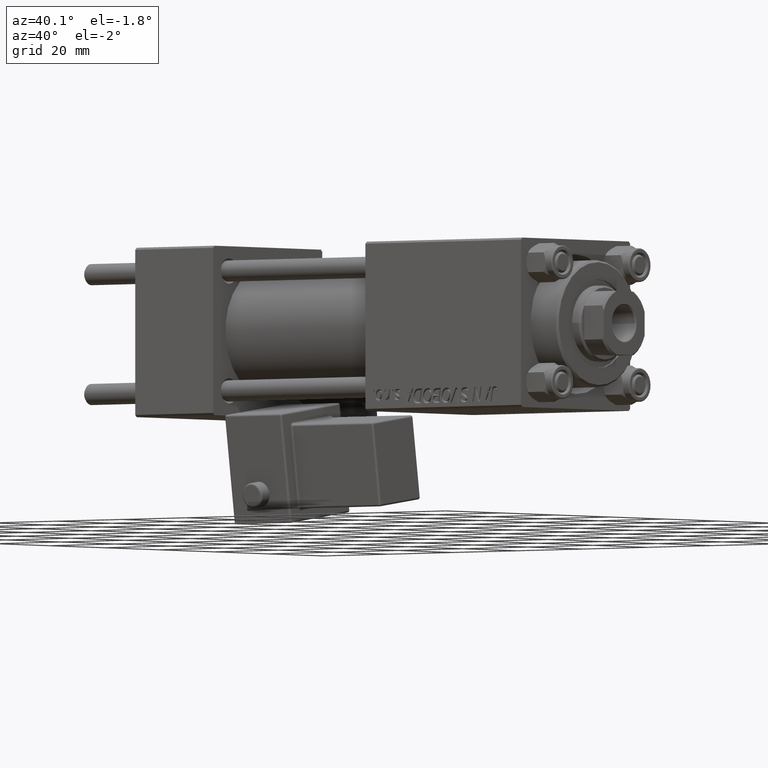
[diagram: clean part render]
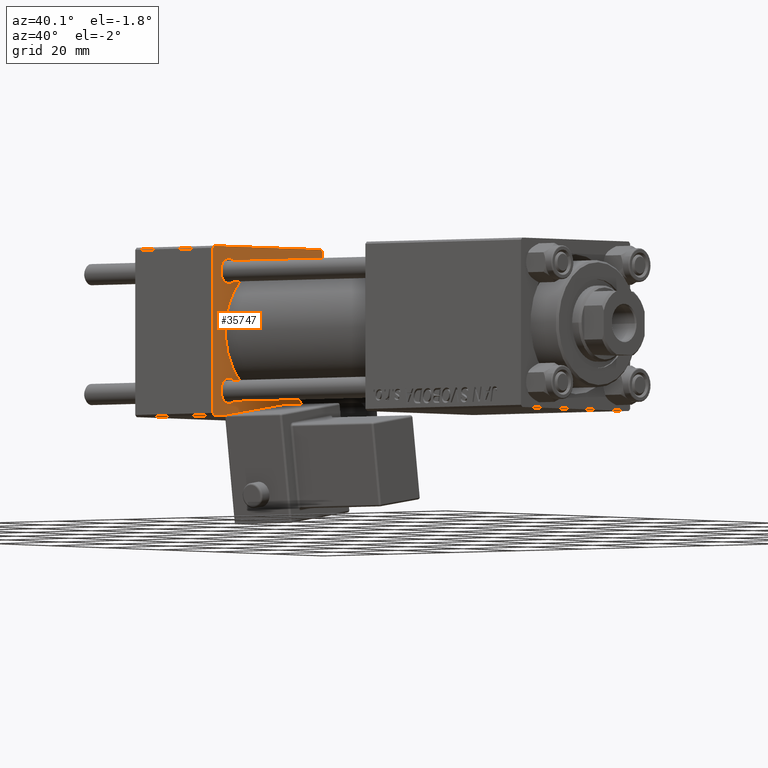
[diagram: same view with one face highlighted and labeled with its STEP entity id]
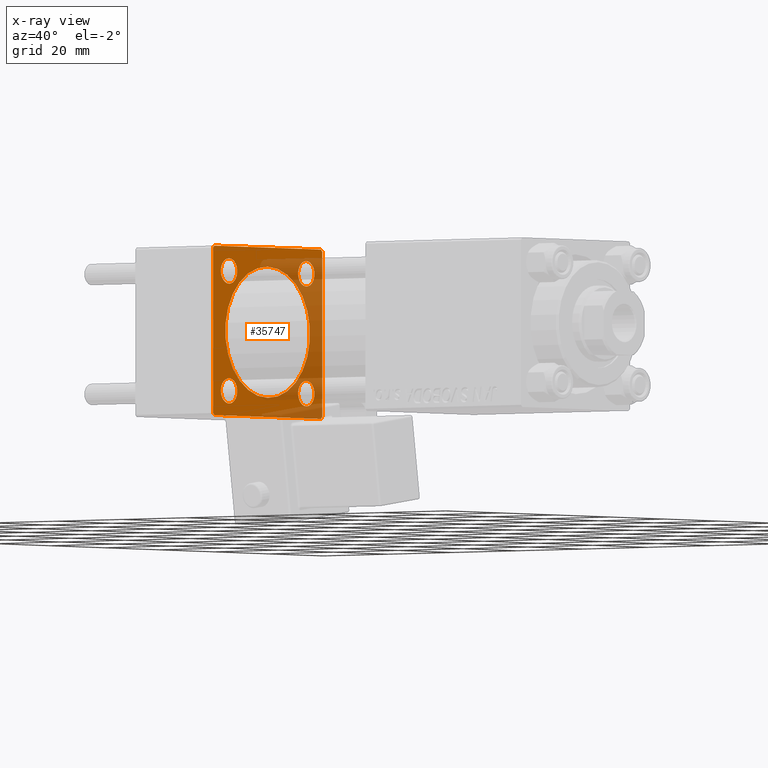
[diagram: x-ray of the same camera — body ghosted, the highlighted face saturated]
A machine part, auxiliary view. The second image highlights one B-rep face of the part: STEP entity #35747.
The next image is the same camera in x-ray: the body ghosted, the highlighted face saturated — about 40% of this face is hidden behind the body in this view.
In plain terms, the highlighted planar face has unit normal (-1, 0, 0).
Its self-contained STEP definition (entity closure, byte-faithful):
#944 = CIRCLE ( 'NONE', #25264, 2.999999999999976463 ) ;
#1040 = CARTESIAN_POINT ( 'NONE',  ( 24.00000000000000000, -14.14999999999999503, 14.15000000000000391 ) ) ;
#1445 = DIRECTION ( 'NONE',  ( -1.000000000000000000, -0.000000000000000000, -0.000000000000000000 ) ) ;
#1588 = VECTOR ( 'NONE', #30825, 1000.000000000000000 ) ;
#1781 = CARTESIAN_POINT ( 'NONE',  ( 24.00000000000000000, 14.14999999999999858, 14.15000000000000036 ) ) ;
#1873 = CIRCLE ( 'NONE', #35446, 3.000000000000000888 ) ;
#2028 = FACE_BOUND ( 'NONE', #12432, .T. ) ;
#2211 = ORIENTED_EDGE ( 'NONE', *, *, #8078, .T. ) ;
#3961 = CARTESIAN_POINT ( 'NONE',  ( 24.00000000000000000, 20.00000000000000000, 20.00000000000000000 ) ) ;
#4004 = DIRECTION ( 'NONE',  ( 0.000000000000000000, -0.7071067811865425767, 0.7071067811865525687 ) ) ;
#4268 = DIRECTION ( 'NONE',  ( -1.000000000000000000, -0.000000000000000000, -0.000000000000000000 ) ) ;
#5133 = DIRECTION ( 'NONE',  ( 0.000000000000000000, 0.000000000000000000, 1.000000000000000000 ) ) ;
#5181 = VERTEX_POINT ( 'NONE', #15562 ) ;
#5207 = EDGE_LOOP ( 'NONE', ( #20377, #37912 ) ) ;
#5316 = CARTESIAN_POINT ( 'NONE',  ( 24.00000000000000000, -20.00000000000000355, 19.99999999999998934 ) ) ;
#5335 = AXIS2_PLACEMENT_3D ( 'NONE', #1781, #13868, #21994 ) ;
#5509 = CARTESIAN_POINT ( 'NONE',  ( 24.00000000000000000, 0.000000000000000000, 0.000000000000000000 ) ) ;
#5658 = EDGE_LOOP ( 'NONE', ( #10948, #41906 ) ) ;
#5963 = ORIENTED_EDGE ( 'NONE', *, *, #8298, .T. ) ;
#6336 = CARTESIAN_POINT ( 'NONE',  ( 24.00000000000000000, 0.000000000000000000, 15.50000000000000000 ) ) ;
#7168 = CARTESIAN_POINT ( 'NONE',  ( 24.00000000000000000, -14.14999999999999503, -14.15000000000000391 ) ) ;
#7766 = DIRECTION ( 'NONE',  ( -1.000000000000000000, -0.000000000000000000, -0.000000000000000000 ) ) ;
#7775 = CIRCLE ( 'NONE', #43846, 15.50000000000000000 ) ;
#8078 = EDGE_CURVE ( 'NONE', #27614, #38458, #36846, .T. ) ;
#8119 = LINE ( 'NONE', #40158, #32316 ) ;
#8135 = CARTESIAN_POINT ( 'NONE',  ( 24.00000000000000000, -20.00000000000000000, -19.49999999999999645 ) ) ;
#8204 = CARTESIAN_POINT ( 'NONE',  ( 24.00000000000000000, -14.14999999999999503, -14.15000000000000391 ) ) ;
#8298 = EDGE_CURVE ( 'NONE', #48538, #5181, #43889, .T. ) ;
#8368 = DIRECTION ( 'NONE',  ( 0.000000000000000000, 0.000000000000000000, -1.000000000000000000 ) ) ;
#8573 = EDGE_CURVE ( 'NONE', #28172, #10254, #44094, .T. ) ;
#8959 = EDGE_CURVE ( 'NONE', #27346, #49787, #7775, .T. ) ;
#9004 = DIRECTION ( 'NONE',  ( -0.000000000000000000, -0.7071067811865500152, -0.7071067811865451302 ) ) ;
#9255 = CARTESIAN_POINT ( 'NONE',  ( 24.00000000000000000, -20.00000000000000355, 19.49999999999998224 ) ) ;
#9356 = CARTESIAN_POINT ( 'NONE',  ( 24.00000000000000000, 20.00000000000000000, -19.50000000000002132 ) ) ;
#9438 = DIRECTION ( 'NONE',  ( 0.000000000000000000, 0.000000000000000000, 1.000000000000000000 ) ) ;
#9457 = ORIENTED_EDGE ( 'NONE', *, *, #18639, .T. ) ;
#10254 = VERTEX_POINT ( 'NONE', #9356 ) ;
#10919 = CARTESIAN_POINT ( 'NONE',  ( 24.00000000000000000, -20.00000000000000355, 19.49999999999998224 ) ) ;
#10948 = ORIENTED_EDGE ( 'NONE', *, *, #8959, .F. ) ;
#11182 = DIRECTION ( 'NONE',  ( 0.000000000000000000, 0.000000000000000000, 1.000000000000000000 ) ) ;
#11268 = DIRECTION ( 'NONE',  ( -0.000000000000000000, 0.7071067811865524577, 0.7071067811865426878 ) ) ;
#11467 = DIRECTION ( 'NONE',  ( 1.000000000000000000, 0.000000000000000000, 0.000000000000000000 ) ) ;
#11614 = CARTESIAN_POINT ( 'NONE',  ( 24.00000000000000000, -14.14999999999999503, 11.15000000000000391 ) ) ;
#11672 = VERTEX_POINT ( 'NONE', #18719 ) ;
#11845 = CARTESIAN_POINT ( 'NONE',  ( 24.00000000000000000, 20.00000000000000000, 19.49999999999999289 ) ) ;
#12309 = VERTEX_POINT ( 'NONE', #11614 ) ;
#12360 = ORIENTED_EDGE ( 'NONE', *, *, #40554, .T. ) ;
#12379 = CARTESIAN_POINT ( 'NONE',  ( 24.00000000000000000, -14.14999999999999503, 17.15000000000000568 ) ) ;
#12432 = EDGE_LOOP ( 'NONE', ( #9457, #12360 ) ) ;
#13020 = AXIS2_PLACEMENT_3D ( 'NONE', #26176, #45392, #30115 ) ;
#13424 = VECTOR ( 'NONE', #4004, 999.9999999999998863 ) ;
#13868 = DIRECTION ( 'NONE',  ( -1.000000000000000000, -0.000000000000000000, -0.000000000000000000 ) ) ;
#14212 = CIRCLE ( 'NONE', #39389, 3.000000000000000888 ) ;
#14413 = CARTESIAN_POINT ( 'NONE',  ( 24.00000000000000000, 14.14999999999999858, 11.15000000000002700 ) ) ;
#14617 = CARTESIAN_POINT ( 'NONE',  ( 24.00000000000000000, 19.50000000000000000, 20.00000000000000000 ) ) ;
#14796 = CARTESIAN_POINT ( 'NONE',  ( 24.00000000000000000, 20.00000000000000000, -20.00000000000000711 ) ) ;
#14819 = CARTESIAN_POINT ( 'NONE',  ( 24.00000000000000000, 1.898202538678397557E-15, -15.50000000000000000 ) ) ;
#14871 = CARTESIAN_POINT ( 'NONE',  ( 24.00000000000000000, 0.000000000000000000, 0.000000000000000000 ) ) ;
#14946 = EDGE_CURVE ( 'NONE', #28172, #17836, #50817, .T. ) ;
#15046 = CARTESIAN_POINT ( 'NONE',  ( 24.00000000000000000, 14.14999999999999858, -14.15000000000000036 ) ) ;
#15562 = CARTESIAN_POINT ( 'NONE',  ( 24.00000000000000000, -19.49999999999999289, 19.99999999999998934 ) ) ;
#16476 = ORIENTED_EDGE ( 'NONE', *, *, #19170, .T. ) ;
#17376 = DIRECTION ( 'NONE',  ( 0.000000000000000000, 8.673617379884036705E-17, -1.000000000000000000 ) ) ;
#17654 = EDGE_LOOP ( 'NONE', ( #36137, #38453 ) ) ;
#17773 = FACE_BOUND ( 'NONE', #5207, .T. ) ;
#17836 = VERTEX_POINT ( 'NONE', #29004 ) ;
#18035 = PLANE ( 'NONE',  #13020 ) ;
#18186 = CARTESIAN_POINT ( 'NONE',  ( 24.00000000000000000, -19.50000000000000711, -20.00000000000000000 ) ) ;
#18286 = FACE_BOUND ( 'NONE', #5658, .T. ) ;
#18620 = EDGE_LOOP ( 'NONE', ( #29977, #16476 ) ) ;
#18639 = EDGE_CURVE ( 'NONE', #27790, #43013, #25941, .T. ) ;
#18719 = CARTESIAN_POINT ( 'NONE',  ( 24.00000000000000000, -14.14999999999999503, -17.15000000000000568 ) ) ;
#19170 = EDGE_CURVE ( 'NONE', #24617, #11672, #14212, .T. ) ;
#20269 = CARTESIAN_POINT ( 'NONE',  ( 24.00000000000000000, 19.50000000000000000, 20.00000000000000000 ) ) ;
#20278 = DIRECTION ( 'NONE',  ( 0.000000000000000000, 0.000000000000000000, 1.000000000000000000 ) ) ;
#20377 = ORIENTED_EDGE ( 'NONE', *, *, #42641, .T. ) ;
#20881 = EDGE_CURVE ( 'NONE', #23462, #48538, #48397, .T. ) ;
#21213 = ORIENTED_EDGE ( 'NONE', *, *, #20881, .T. ) ;
#21876 = DIRECTION ( 'NONE',  ( 0.000000000000000000, 0.7071067811865401342, -0.7071067811865549002 ) ) ;
#21994 = DIRECTION ( 'NONE',  ( 0.000000000000000000, 0.000000000000000000, 1.000000000000000000 ) ) ;
#22191 = EDGE_CURVE ( 'NONE', #50868, #12309, #47044, .T. ) ;
#23462 = VERTEX_POINT ( 'NONE', #11845 ) ;
#23905 = DIRECTION ( 'NONE',  ( 0.000000000000000000, -1.000000000000000000, -2.602085213965210149E-16 ) ) ;
#24151 = DIRECTION ( 'NONE',  ( 0.000000000000000000, 0.000000000000000000, 1.000000000000000000 ) ) ;
#24370 = AXIS2_PLACEMENT_3D ( 'NONE', #27085, #42342, #37885 ) ;
#24617 = VERTEX_POINT ( 'NONE', #28521 ) ;
#24681 = DIRECTION ( 'NONE',  ( -1.000000000000000000, -0.000000000000000000, -0.000000000000000000 ) ) ;
#25264 = AXIS2_PLACEMENT_3D ( 'NONE', #15046, #24681, #24151 ) ;
#25342 = VECTOR ( 'NONE', #17376, 1000.000000000000000 ) ;
#25847 = ORIENTED_EDGE ( 'NONE', *, *, #14946, .F. ) ;
#25941 = CIRCLE ( 'NONE', #51144, 2.999999999999976463 ) ;
#26163 = EDGE_CURVE ( 'NONE', #38458, #17836, #33440, .T. ) ;
#26176 = CARTESIAN_POINT ( 'NONE',  ( 24.00000000000000000, 0.000000000000000000, 0.000000000000000000 ) ) ;
#26600 = DIRECTION ( 'NONE',  ( -1.000000000000000000, -0.000000000000000000, -0.000000000000000000 ) ) ;
#27085 = CARTESIAN_POINT ( 'NONE',  ( 24.00000000000000000, -14.14999999999999503, 14.15000000000000391 ) ) ;
#27346 = VERTEX_POINT ( 'NONE', #6336 ) ;
#27614 = VERTEX_POINT ( 'NONE', #10919 ) ;
#27643 = EDGE_CURVE ( 'NONE', #49787, #27346, #46401, .T. ) ;
#27790 = VERTEX_POINT ( 'NONE', #46915 ) ;
#27817 = VECTOR ( 'NONE', #9004, 1000.000000000000114 ) ;
#28172 = VERTEX_POINT ( 'NONE', #38195 ) ;
#28521 = CARTESIAN_POINT ( 'NONE',  ( 24.00000000000000000, -14.14999999999999503, -11.15000000000000391 ) ) ;
#28795 = CIRCLE ( 'NONE', #5335, 2.999999999999976463 ) ;
#29004 = CARTESIAN_POINT ( 'NONE',  ( 24.00000000000000000, -19.50000000000000711, -20.00000000000000000 ) ) ;
#29340 = FACE_OUTER_BOUND ( 'NONE', #35057, .T. ) ;
#29600 = FACE_BOUND ( 'NONE', #17654, .T. ) ;
#29977 = ORIENTED_EDGE ( 'NONE', *, *, #37263, .T. ) ;
#30115 = DIRECTION ( 'NONE',  ( -0.000000000000000000, 0.000000000000000000, 1.000000000000000000 ) ) ;
#30711 = CIRCLE ( 'NONE', #46667, 3.000000000000000888 ) ;
#30825 = DIRECTION ( 'NONE',  ( 0.000000000000000000, -1.000000000000000000, 1.734723475976807094E-16 ) ) ;
#30903 = DIRECTION ( 'NONE',  ( 0.000000000000000000, 0.000000000000000000, 1.000000000000000000 ) ) ;
#31054 = DIRECTION ( 'NONE',  ( 0.000000000000000000, 0.000000000000000000, 1.000000000000000000 ) ) ;
#31539 = EDGE_CURVE ( 'NONE', #34517, #47908, #28795, .T. ) ;
#32316 = VECTOR ( 'NONE', #8368, 1000.000000000000000 ) ;
#32633 = CARTESIAN_POINT ( 'NONE',  ( 24.00000000000000000, 14.14999999999999858, -11.15000000000002700 ) ) ;
#33109 = CIRCLE ( 'NONE', #43180, 2.999999999999976463 ) ;
#33179 = ORIENTED_EDGE ( 'NONE', *, *, #26163, .T. ) ;
#33237 = ORIENTED_EDGE ( 'NONE', *, *, #50390, .F. ) ;
#33440 = LINE ( 'NONE', #18186, #35451 ) ;
#33592 = DIRECTION ( 'NONE',  ( -1.000000000000000000, -0.000000000000000000, -0.000000000000000000 ) ) ;
#33920 = CARTESIAN_POINT ( 'NONE',  ( 24.00000000000000000, 14.14999999999999858, 17.14999999999997726 ) ) ;
#34517 = VERTEX_POINT ( 'NONE', #14413 ) ;
#34579 = VECTOR ( 'NONE', #23905, 1000.000000000000000 ) ;
#34854 = ORIENTED_EDGE ( 'NONE', *, *, #41620, .T. ) ;
#35057 = EDGE_LOOP ( 'NONE', ( #25847, #48902, #33237, #21213, #5963, #34854, #2211, #33179 ) ) ;
#35446 = AXIS2_PLACEMENT_3D ( 'NONE', #1040, #33592, #9438 ) ;
#35451 = VECTOR ( 'NONE', #21876, 1000.000000000000000 ) ;
#35747 = ADVANCED_FACE ( 'NONE', ( #49582, #2028, #17773, #29600, #18286, #29340 ), #18035, .F. ) ;
#36137 = ORIENTED_EDGE ( 'NONE', *, *, #31539, .T. ) ;
#36846 = LINE ( 'NONE', #5316, #25342 ) ;
#37263 = EDGE_CURVE ( 'NONE', #11672, #24617, #30711, .T. ) ;
#37446 = CARTESIAN_POINT ( 'NONE',  ( 24.00000000000000000, 14.14999999999999858, 14.15000000000000036 ) ) ;
#37885 = DIRECTION ( 'NONE',  ( 0.000000000000000000, 0.000000000000000000, 1.000000000000000000 ) ) ;
#37912 = ORIENTED_EDGE ( 'NONE', *, *, #22191, .T. ) ;
#38195 = CARTESIAN_POINT ( 'NONE',  ( 24.00000000000000000, 19.50000000000000711, -20.00000000000000711 ) ) ;
#38453 = ORIENTED_EDGE ( 'NONE', *, *, #48796, .T. ) ;
#38458 = VERTEX_POINT ( 'NONE', #8135 ) ;
#39389 = AXIS2_PLACEMENT_3D ( 'NONE', #8204, #4268, #20278 ) ;
#39634 = CARTESIAN_POINT ( 'NONE',  ( 24.00000000000000000, 20.00000000000000000, -19.50000000000002132 ) ) ;
#40158 = CARTESIAN_POINT ( 'NONE',  ( 24.00000000000000000, 20.00000000000000000, 20.00000000000000000 ) ) ;
#40554 = EDGE_CURVE ( 'NONE', #43013, #27790, #944, .T. ) ;
#41620 = EDGE_CURVE ( 'NONE', #5181, #27614, #45258, .T. ) ;
#41906 = ORIENTED_EDGE ( 'NONE', *, *, #27643, .F. ) ;
#42342 = DIRECTION ( 'NONE',  ( -1.000000000000000000, -0.000000000000000000, -0.000000000000000000 ) ) ;
#42641 = EDGE_CURVE ( 'NONE', #12309, #50868, #1873, .T. ) ;
#43013 = VERTEX_POINT ( 'NONE', #32633 ) ;
#43180 = AXIS2_PLACEMENT_3D ( 'NONE', #37446, #1445, #5133 ) ;
#43846 = AXIS2_PLACEMENT_3D ( 'NONE', #14871, #11467, #30903 ) ;
#43889 = LINE ( 'NONE', #3961, #34579 ) ;
#44094 = LINE ( 'NONE', #39634, #48873 ) ;
#45258 = LINE ( 'NONE', #9255, #27817 ) ;
#45392 = DIRECTION ( 'NONE',  ( -1.000000000000000000, 0.000000000000000000, -0.000000000000000000 ) ) ;
#46401 = CIRCLE ( 'NONE', #50610, 15.50000000000000000 ) ;
#46667 = AXIS2_PLACEMENT_3D ( 'NONE', #7168, #26600, #31054 ) ;
#46669 = DIRECTION ( 'NONE',  ( 1.000000000000000000, 0.000000000000000000, 0.000000000000000000 ) ) ;
#46915 = CARTESIAN_POINT ( 'NONE',  ( 24.00000000000000000, 14.14999999999999858, -17.14999999999997726 ) ) ;
#47044 = CIRCLE ( 'NONE', #24370, 3.000000000000000888 ) ;
#47689 = CARTESIAN_POINT ( 'NONE',  ( 24.00000000000000000, 14.14999999999999858, -14.15000000000000036 ) ) ;
#47908 = VERTEX_POINT ( 'NONE', #33920 ) ;
#48397 = LINE ( 'NONE', #20269, #13424 ) ;
#48538 = VERTEX_POINT ( 'NONE', #14617 ) ;
#48796 = EDGE_CURVE ( 'NONE', #47908, #34517, #33109, .T. ) ;
#48873 = VECTOR ( 'NONE', #11268, 1000.000000000000000 ) ;
#48902 = ORIENTED_EDGE ( 'NONE', *, *, #8573, .T. ) ;
#49582 = FACE_BOUND ( 'NONE', #18620, .T. ) ;
#49628 = DIRECTION ( 'NONE',  ( 0.000000000000000000, 0.000000000000000000, 1.000000000000000000 ) ) ;
#49787 = VERTEX_POINT ( 'NONE', #14819 ) ;
#50390 = EDGE_CURVE ( 'NONE', #23462, #10254, #8119, .T. ) ;
#50610 = AXIS2_PLACEMENT_3D ( 'NONE', #5509, #46669, #49628 ) ;
#50817 = LINE ( 'NONE', #14796, #1588 ) ;
#50868 = VERTEX_POINT ( 'NONE', #12379 ) ;
#51144 = AXIS2_PLACEMENT_3D ( 'NONE', #47689, #7766, #11182 ) ;